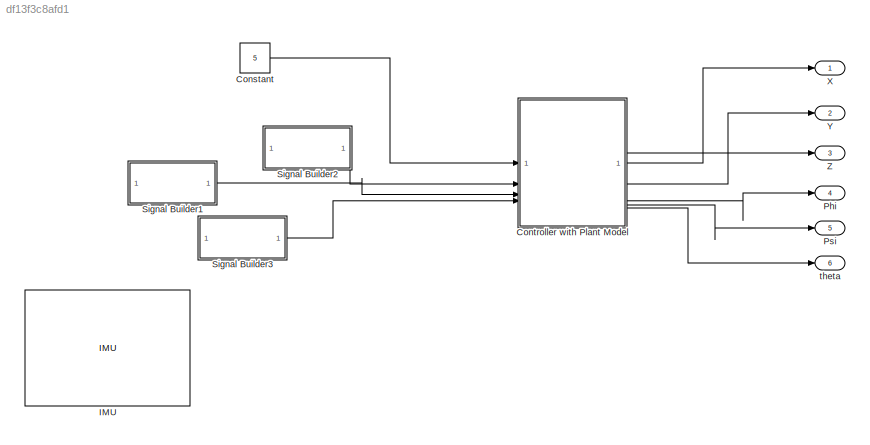
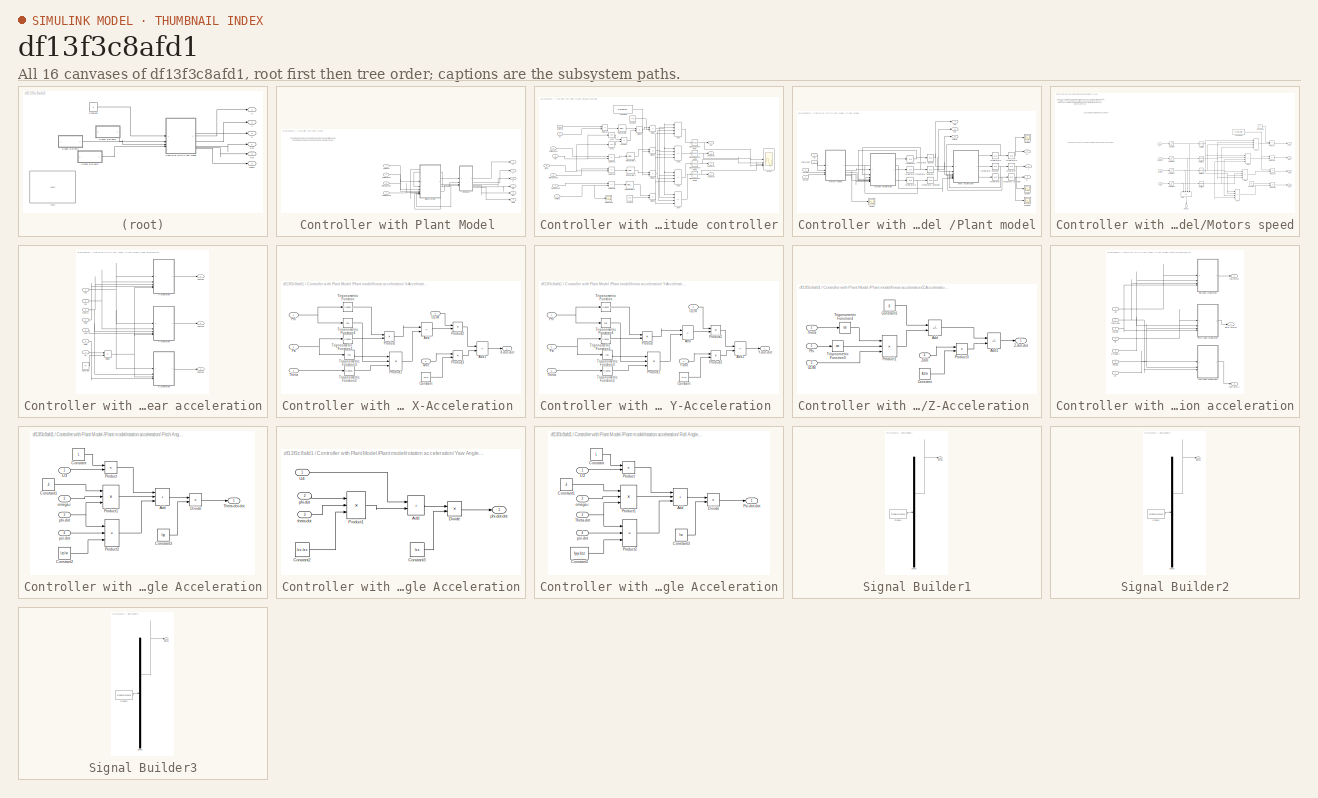
[diagram: thumbnail index - all 16 canvases of the model, root first then tree order]
MODEL slx_df13f3c8afd1
KIND model
CONFIG AbsTol = auto
CONFIG EnableMultiTasking = off
CONFIG FixedStep = auto
CONFIG MaxStep = auto
CONFIG MinStep = auto
CONFIG RelTol = 1e-3
CONFIG SampleTimeConstraint = Unconstrained
CONFIG SolverName = VariableStepAuto
CONFIG StartTime = 0.0
CONFIG StopTime = 10.0
BLOCK [Constant] Constant
  Value = 5
BLOCK [SubSystem] Controller with Plant Model 
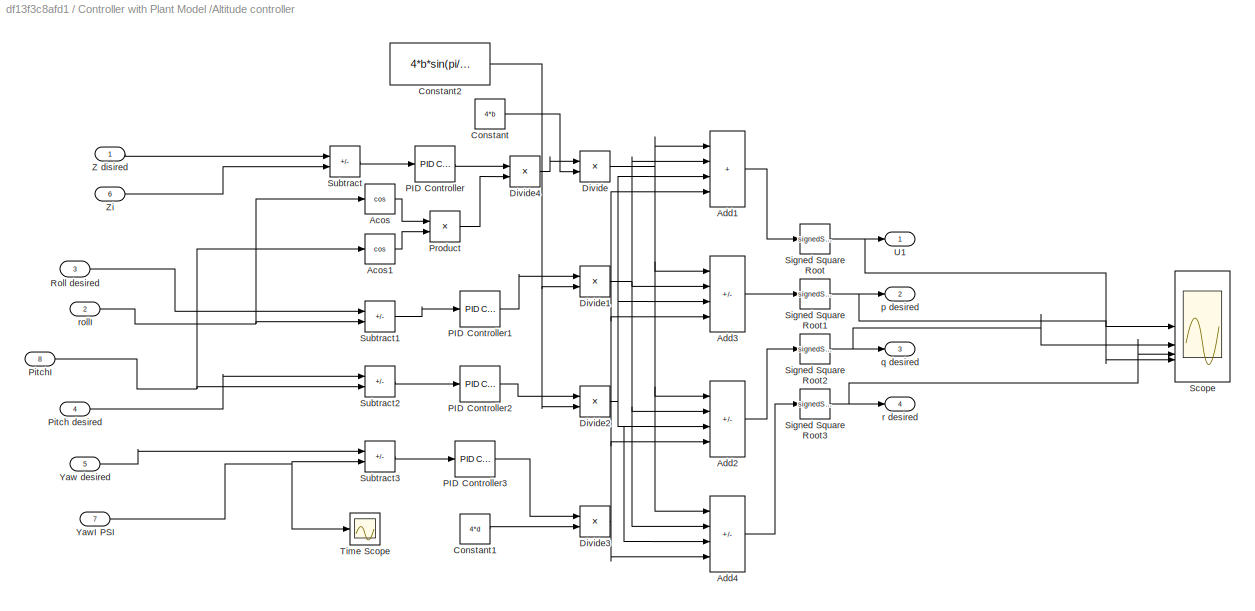
BLOCK [SubSystem] Controller with Plant Model /Altitude controller
BLOCK [Trigonometry] Controller with Plant Model /Altitude controller/Acos
  Operator = cos
BLOCK [Trigonometry] Controller with Plant Model /Altitude controller/Acos1
  Operator = cos
BLOCK [Sum] Controller with Plant Model /Altitude controller/Add1
  IconShape = rectangular
  Inputs = ++++
BLOCK [Sum] Controller with Plant Model /Altitude controller/Add2
  IconShape = rectangular
  Inputs = --++
BLOCK [Sum] Controller with Plant Model /Altitude controller/Add3
  IconShape = rectangular
  Inputs = +--+
BLOCK [Sum] Controller with Plant Model /Altitude controller/Add4
  IconShape = rectangular
  Inputs = +-+-
BLOCK [Constant] Controller with Plant Model /Altitude controller/Constant
  Value = 4*b
BLOCK [Constant] Controller with Plant Model /Altitude controller/Constant1
  Value = 4*d
BLOCK [Constant] Controller with Plant Model /Altitude controller/Constant2
  Value = 4*b*sin(pi/4)*L
BLOCK [Product] Controller with Plant Model /Altitude controller/Divide
  Inputs = */
BLOCK [Product] Controller with Plant Model /Altitude controller/Divide1
  Inputs = */
BLOCK [Product] Controller with Plant Model /Altitude controller/Divide2
  Inputs = */
BLOCK [Product] Controller with Plant Model /Altitude controller/Divide3
  Inputs = */
BLOCK [Product] Controller with Plant Model /Altitude controller/Divide4
  Inputs = */
BLOCK [Reference] Controller with Plant Model /Altitude controller/PID Controller  REF=slpidlib/PID Controller
  LibrarySourceBlock = simulink/Continuous/PID Controller
  SourceBlock = slpidlib/PID Controller
  SourceType = PID 1dof
BLOCK [Reference] Controller with Plant Model /Altitude controller/PID Controller1  REF=slpidlib/PID Controller
  LibrarySourceBlock = simulink/Continuous/PID Controller
  SourceBlock = slpidlib/PID Controller
  SourceType = PID 1dof
BLOCK [Reference] Controller with Plant Model /Altitude controller/PID Controller2  REF=slpidlib/PID Controller
  LibrarySourceBlock = simulink/Continuous/PID Controller
  SourceBlock = slpidlib/PID Controller
  SourceType = PID 1dof
BLOCK [Reference] Controller with Plant Model /Altitude controller/PID Controller3  REF=slpidlib/PID Controller
  LibrarySourceBlock = simulink/Continuous/PID Controller
  SourceBlock = slpidlib/PID Controller
  SourceType = PID 1dof
BLOCK [Inport] Controller with Plant Model /Altitude controller/Pitch desired
  Port = 4
BLOCK [Inport] Controller with Plant Model /Altitude controller/PitchI
  Port = 8
BLOCK [Product] Controller with Plant Model /Altitude controller/Product
BLOCK [Inport] Controller with Plant Model /Altitude controller/Roll desired
  Port = 3
BLOCK [Scope] Controller with Plant Model /Altitude controller/Scope
  Floating = off
  NumInputPorts = 4
  ScopeSpecificationString = Simulink.scopes.TimeScopeBlockCfg('CurrentConfiguration', extmgr.ConfigurationSet(extmgr.Configuration('Core','General UI',true),extmgr.Configuration('Core','Source UI',true),extmgr.Configuration('Sources','WiredSimulink',true,'DataLoggingVariableName','ScopeData1'),extmgr.Configuration('Visuals','Time Domain',true),extmgr.Configuration('Tools','Plot Navigation',true),extmgr.Configuration('Tools',...<+58ch>
BLOCK [Sqrt] Controller with Plant Model /Altitude controller/Signed Square Root
  Operator = signedSqrt
BLOCK [Sqrt] Controller with Plant Model /Altitude controller/Signed Square Root1
  Operator = signedSqrt
BLOCK [Sqrt] Controller with Plant Model /Altitude controller/Signed Square Root2
  Operator = signedSqrt
BLOCK [Sqrt] Controller with Plant Model /Altitude controller/Signed Square Root3
  Operator = signedSqrt
BLOCK [Sum] Controller with Plant Model /Altitude controller/Subtract
  IconShape = rectangular
  Inputs = +-
BLOCK [Sum] Controller with Plant Model /Altitude controller/Subtract1
  IconShape = rectangular
  Inputs = +-
BLOCK [Sum] Controller with Plant Model /Altitude controller/Subtract2
  IconShape = rectangular
  Inputs = +-
BLOCK [Sum] Controller with Plant Model /Altitude controller/Subtract3
  IconShape = rectangular
  Inputs = +-
BLOCK [Scope] Controller with Plant Model /Altitude controller/Time Scope
  DefaultConfigurationName = spbscopes.TimeScopeBlockCfg
  Floating = off
  NumInputPorts = 1
  ScopeSpecificationString = spbscopes.TimeScopeBlockCfg('CurrentConfiguration', extmgr.ConfigurationSet(extmgr.Configuration('Core','General UI',true,'FigureColor',[0.156862745098039 0.156862745098039 0.156862745098039]),extmgr.Configuration('Core','Source UI',true),extmgr.Configuration('Sources','WiredSimulink',true,'DataLoggingVariableName','ScopeData2'),extmgr.Configuration('Visuals','Time Domain',true,'DisplayPropertyDef...<+1385ch>
  UserDataPersistent = on
BLOCK [Outport] Controller with Plant Model /Altitude controller/U1
BLOCK [Inport] Controller with Plant Model /Altitude controller/Yaw desired
  Port = 5
BLOCK [Inport] Controller with Plant Model /Altitude controller/YawI PSI
  Port = 7
BLOCK [Inport] Controller with Plant Model /Altitude controller/Z disired
BLOCK [Inport] Controller with Plant Model /Altitude controller/Zi
  Port = 6
BLOCK [Outport] Controller with Plant Model /Altitude controller/p desired
  Port = 2
BLOCK [Outport] Controller with Plant Model /Altitude controller/q desired
  Port = 3
BLOCK [Outport] Controller with Plant Model /Altitude controller/r desired
  Port = 4
BLOCK [Inport] Controller with Plant Model /Altitude controller/rollI
  Port = 2
BLOCK [Outport] Controller with Plant Model /Phi
  Port = 4
BLOCK [Inport] Controller with Plant Model /Pitch desired
  Port = 3
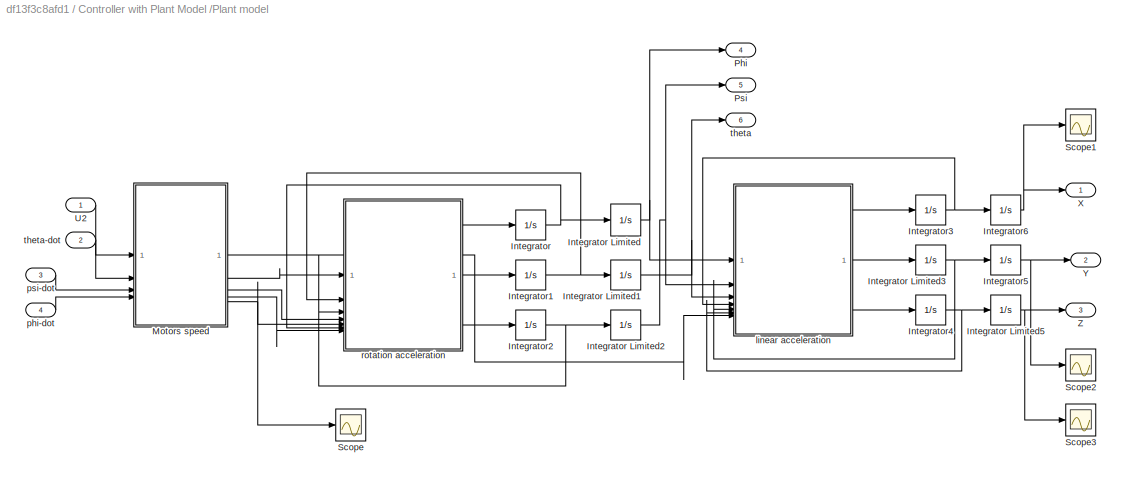
BLOCK [SubSystem] Controller with Plant Model /Plant model
BLOCK [Integrator] Controller with Plant Model /Plant model/Integrator
  LowerSaturationLimit = 0
BLOCK [Integrator] Controller with Plant Model /Plant model/Integrator Limited
  LowerSaturationLimit = 0
  UpperSaturationLimit = 1
  WrapState = on
BLOCK [Integrator] Controller with Plant Model /Plant model/Integrator Limited1
  LowerSaturationLimit = 0
  UpperSaturationLimit = 1
  WrapState = on
BLOCK [Integrator] Controller with Plant Model /Plant model/Integrator Limited2
  LowerSaturationLimit = 0
  UpperSaturationLimit = 1
  WrapState = on
BLOCK [Integrator] Controller with Plant Model /Plant model/Integrator Limited3
  LowerSaturationLimit = 0
  UpperSaturationLimit = 1
BLOCK [Integrator] Controller with Plant Model /Plant model/Integrator Limited5
  LimitOutput = on
  LowerSaturationLimit = -100
  UpperSaturationLimit = 100
BLOCK [Integrator] Controller with Plant Model /Plant model/Integrator1
BLOCK [Integrator] Controller with Plant Model /Plant model/Integrator2
BLOCK [Integrator] Controller with Plant Model /Plant model/Integrator3
BLOCK [Integrator] Controller with Plant Model /Plant model/Integrator4
BLOCK [Integrator] Controller with Plant Model /Plant model/Integrator5
  LimitOutput = on
  LowerSaturationLimit = -100
  UpperSaturationLimit = 100
BLOCK [Integrator] Controller with Plant Model /Plant model/Integrator6
  LimitOutput = on
  LowerSaturationLimit = -100
  UpperSaturationLimit = 100
BLOCK [SubSystem] Controller with Plant Model /Plant model/Motors speed
BLOCK [Sum] Controller with Plant Model /Plant model/Motors speed/Add
  IconShape = rectangular
  Inputs = -+-+
  NameLocation = left
BLOCK [Sum] Controller with Plant Model /Plant model/Motors speed/Add1
  IconShape = rectangular
  Inputs = ++++
BLOCK [Sum] Controller with Plant Model /Plant model/Motors speed/Add2
  IconShape = rectangular
  Inputs = --++
BLOCK [Sum] Controller with Plant Model /Plant model/Motors speed/Add3
  IconShape = rectangular
  Inputs = +--+
BLOCK [Sum] Controller with Plant Model /Plant model/Motors speed/Add4
  IconShape = rectangular
  Inputs = +-+-
BLOCK [Constant] Controller with Plant Model /Plant model/Motors speed/Constant
  Value = d
BLOCK [Constant] Controller with Plant Model /Plant model/Motors speed/Constant1
  Value = b
BLOCK [Constant] Controller with Plant Model /Plant model/Motors speed/Constant2
  Value = b*sin(pi/4)
BLOCK [Math] Controller with Plant Model /Plant model/Motors speed/Hermitian
  Operator = square
BLOCK [Math] Controller with Plant Model /Plant model/Motors speed/Hermitian1
  Operator = square
BLOCK [Math] Controller with Plant Model /Plant model/Motors speed/Hermitian2
  Operator = square
BLOCK [Math] Controller with Plant Model /Plant model/Motors speed/Hermitian3
  Operator = square
BLOCK [Outport] Controller with Plant Model /Plant model/Motors speed/Omega
  NameLocation = left
  Port = 5
BLOCK [Product] Controller with Plant Model /Plant model/Motors speed/Product
BLOCK [Product] Controller with Plant Model /Plant model/Motors speed/Product1
BLOCK [Product] Controller with Plant Model /Plant model/Motors speed/Product2
BLOCK [Product] Controller with Plant Model /Plant model/Motors speed/Product3
BLOCK [Saturate] Controller with Plant Model /Plant model/Motors speed/Saturation
  LowerLimit = -pi
  UpperLimit = pi
BLOCK [Saturate] Controller with Plant Model /Plant model/Motors speed/Saturation1
  LowerLimit = -pi
  UpperLimit = pi
BLOCK [Saturate] Controller with Plant Model /Plant model/Motors speed/Saturation2
  LowerLimit = -pi
  UpperLimit = pi
BLOCK [Saturate] Controller with Plant Model /Plant model/Motors speed/Saturation3
  LowerLimit = -pi
  UpperLimit = pi
BLOCK [Outport] Controller with Plant Model /Plant model/Motors speed/U1,Fz
BLOCK [Inport] Controller with Plant Model /Plant model/Motors speed/U2
BLOCK [Outport] Controller with Plant Model /Plant model/Motors speed/U2,L
  Port = 2
BLOCK [Inport] Controller with Plant Model /Plant model/Motors speed/U3
  Port = 4
BLOCK [Outport] Controller with Plant Model /Plant model/Motors speed/U3,M
  Port = 3
BLOCK [Outport] Controller with Plant Model /Plant model/Motors speed/U4,N
  Port = 4
BLOCK [Inport] Controller with Plant Model /Plant model/Motors speed/psi-dot
  Port = 3
BLOCK [Inport] Controller with Plant Model /Plant model/Motors speed/theta-dot
  Port = 2
BLOCK [Outport] Controller with Plant Model /Plant model/Phi
  Port = 4
BLOCK [Outport] Controller with Plant Model /Plant model/Psi
  Port = 5
BLOCK [Scope] Controller with Plant Model /Plant model/Scope
  Floating = off
  NumInputPorts = 1
  ScopeSpecificationString = Simulink.scopes.TimeScopeBlockCfg('CurrentConfiguration', extmgr.ConfigurationSet(extmgr.Configuration('Core','General UI',true),extmgr.Configuration('Core','Source UI',true),extmgr.Configuration('Sources','WiredSimulink',true),extmgr.Configuration('Visuals','Time Domain',true),extmgr.Configuration('Tools','Plot Navigation',true),extmgr.Configuration('Tools','Measurements',true)),'Version','2022b'...<+1ch>
BLOCK [Scope] Controller with Plant Model /Plant model/Scope1
  Floating = off
  NumInputPorts = 1
  ScopeSpecificationString = Simulink.scopes.TimeScopeBlockCfg('CurrentConfiguration', extmgr.ConfigurationSet(extmgr.Configuration('Core','General UI',true),extmgr.Configuration('Core','Source UI',true),extmgr.Configuration('Sources','WiredSimulink',true,'DataLoggingVariableName','ScopeData1'),extmgr.Configuration('Visuals','Time Domain',true),extmgr.Configuration('Tools','Plot Navigation',true),extmgr.Configuration('Tools',...<+40ch>
BLOCK [Scope] Controller with Plant Model /Plant model/Scope2
  Floating = off
  NumInputPorts = 1
  ScopeSpecificationString = Simulink.scopes.TimeScopeBlockCfg('CurrentConfiguration', extmgr.ConfigurationSet(extmgr.Configuration('Core','General UI',true),extmgr.Configuration('Core','Source UI',true),extmgr.Configuration('Sources','WiredSimulink',true,'DataLoggingVariableName','ScopeData2'),extmgr.Configuration('Visuals','Time Domain',true),extmgr.Configuration('Tools','Plot Navigation',true),extmgr.Configuration('Tools',...<+40ch>
BLOCK [Scope] Controller with Plant Model /Plant model/Scope3
  Floating = off
  NumInputPorts = 1
  ScopeSpecificationString = Simulink.scopes.TimeScopeBlockCfg('CurrentConfiguration', extmgr.ConfigurationSet(extmgr.Configuration('Core','General UI',true),extmgr.Configuration('Core','Source UI',true),extmgr.Configuration('Sources','WiredSimulink',true,'DataLoggingVariableName','ScopeData3'),extmgr.Configuration('Visuals','Time Domain',true),extmgr.Configuration('Tools','Plot Navigation',true),extmgr.Configuration('Tools',...<+40ch>
BLOCK [Inport] Controller with Plant Model /Plant model/U2
BLOCK [Outport] Controller with Plant Model /Plant model/X
BLOCK [Outport] Controller with Plant Model /Plant model/Y
  Port = 2
BLOCK [Outport] Controller with Plant Model /Plant model/Z
  Port = 3
BLOCK [SubSystem] Controller with Plant Model /Plant model/linear acceleration
BLOCK [SubSystem] Controller with Plant Model /Plant model/linear acceleration/ X-Acceleration 
BLOCK [Sum] Controller with Plant Model /Plant model/linear acceleration/ X-Acceleration /Add
  IconShape = rectangular
  Inputs = +-
BLOCK [Sum] Controller with Plant Model /Plant model/linear acceleration/ X-Acceleration /Add1
  IconShape = rectangular
  Inputs = +-
BLOCK [Constant] Controller with Plant Model /Plant model/linear acceleration/ X-Acceleration /Constant
  Value = Ax/m
BLOCK [Inport] Controller with Plant Model /Plant model/linear acceleration/ X-Acceleration /Phi
BLOCK [Product] Controller with Plant Model /Plant model/linear acceleration/ X-Acceleration /Product
BLOCK [Product] Controller with Plant Model /Plant model/linear acceleration/ X-Acceleration /Product1
  Inputs = 3
BLOCK [Product] Controller with Plant Model /Plant model/linear acceleration/ X-Acceleration /Product2
BLOCK [Product] Controller with Plant Model /Plant model/linear acceleration/ X-Acceleration /Product3
BLOCK [Inport] Controller with Plant Model /Plant model/linear acceleration/ X-Acceleration /Psi
  Port = 2
BLOCK [Inport] Controller with Plant Model /Plant model/linear acceleration/ X-Acceleration /Theta
  Port = 3
BLOCK [Trigonometry] Controller with Plant Model /Plant model/linear acceleration/ X-Acceleration /Trigonometric Function
BLOCK [Trigonometry] Controller with Plant Model /Plant model/linear acceleration/ X-Acceleration /Trigonometric Function1
BLOCK [Trigonometry] Controller with Plant Model /Plant model/linear acceleration/ X-Acceleration /Trigonometric Function2
BLOCK [Trigonometry] Controller with Plant Model /Plant model/linear acceleration/ X-Acceleration /Trigonometric Function3
  Operator = cos
BLOCK [Trigonometry] Controller with Plant Model /Plant model/linear acceleration/ X-Acceleration /Trigonometric Function4
  Operator = cos
BLOCK [Inport] Controller with Plant Model /Plant model/linear acceleration/ X-Acceleration /U1//M
  Port = 5
BLOCK [Outport] Controller with Plant Model /Plant model/linear acceleration/ X-Acceleration /X-dot-dot
BLOCK [Inport] Controller with Plant Model /Plant model/linear acceleration/ X-Acceleration /xdot
  Port = 4
BLOCK [SubSystem] Controller with Plant Model /Plant model/linear acceleration/ Y-Acceleration 
BLOCK [Sum] Controller with Plant Model /Plant model/linear acceleration/ Y-Acceleration /Add
  IconShape = rectangular
  Inputs = -+
BLOCK [Sum] Controller with Plant Model /Plant model/linear acceleration/ Y-Acceleration /Add1
  IconShape = rectangular
  Inputs = +-
BLOCK [Constant] Controller with Plant Model /Plant model/linear acceleration/ Y-Acceleration /Constant
  Value = Ay/m
BLOCK [Inport] Controller with Plant Model /Plant model/linear acceleration/ Y-Acceleration /Phi
BLOCK [Product] Controller with Plant Model /Plant model/linear acceleration/ Y-Acceleration /Product
BLOCK [Product] Controller with Plant Model /Plant model/linear acceleration/ Y-Acceleration /Product1
  Inputs = 3
BLOCK [Product] Controller with Plant Model /Plant model/linear acceleration/ Y-Acceleration /Product2
BLOCK [Product] Controller with Plant Model /Plant model/linear acceleration/ Y-Acceleration /Product3
BLOCK [Inport] Controller with Plant Model /Plant model/linear acceleration/ Y-Acceleration /Psi
  Port = 2
BLOCK [Inport] Controller with Plant Model /Plant model/linear acceleration/ Y-Acceleration /Theta
  Port = 3
BLOCK [Trigonometry] Controller with Plant Model /Plant model/linear acceleration/ Y-Acceleration /Trigonometric Function
BLOCK [Trigonometry] Controller with Plant Model /Plant model/linear acceleration/ Y-Acceleration /Trigonometric Function1
BLOCK [Trigonometry] Controller with Plant Model /Plant model/linear acceleration/ Y-Acceleration /Trigonometric Function2
BLOCK [Trigonometry] Controller with Plant Model /Plant model/linear acceleration/ Y-Acceleration /Trigonometric Function3
  Operator = cos
BLOCK [Trigonometry] Controller with Plant Model /Plant model/linear acceleration/ Y-Acceleration /Trigonometric Function4
  Operator = cos
BLOCK [Inport] Controller with Plant Model /Plant model/linear acceleration/ Y-Acceleration /U1//m
  Port = 5
BLOCK [Inport] Controller with Plant Model /Plant model/linear acceleration/ Y-Acceleration /Y-dot
  Port = 4
BLOCK [Outport] Controller with Plant Model /Plant model/linear acceleration/ Y-Acceleration /Y-dot-dot
BLOCK [Constant] Controller with Plant Model /Plant model/linear acceleration/Constant
  Value = m
BLOCK [Product] Controller with Plant Model /Plant model/linear acceleration/Divide
  Inputs = */
BLOCK [Inport] Controller with Plant Model /Plant model/linear acceleration/Phi
BLOCK [Inport] Controller with Plant Model /Plant model/linear acceleration/Psi
  Port = 2
BLOCK [Inport] Controller with Plant Model /Plant model/linear acceleration/U1
  Port = 7
BLOCK [Inport] Controller with Plant Model /Plant model/linear acceleration/Xdot
  Port = 4
BLOCK [Outport] Controller with Plant Model /Plant model/linear acceleration/Xdotdot
BLOCK [Inport] Controller with Plant Model /Plant model/linear acceleration/Ydot
  Port = 5
BLOCK [Outport] Controller with Plant Model /Plant model/linear acceleration/Ydotdot
  Port = 2
BLOCK [SubSystem] Controller with Plant Model /Plant model/linear acceleration/Z-Acceleration 
BLOCK [Sum] Controller with Plant Model /Plant model/linear acceleration/Z-Acceleration /Add
  IconShape = rectangular
  Inputs = -+
BLOCK [Sum] Controller with Plant Model /Plant model/linear acceleration/Z-Acceleration /Add1
  IconShape = rectangular
  Inputs = +-
BLOCK [Constant] Controller with Plant Model /Plant model/linear acceleration/Z-Acceleration /Constant
  Value = Az/m
BLOCK [Constant] Controller with Plant Model /Plant model/linear acceleration/Z-Acceleration /Constant1
  Value = g
BLOCK [Inport] Controller with Plant Model /Plant model/linear acceleration/Z-Acceleration /Phi
BLOCK [Product] Controller with Plant Model /Plant model/linear acceleration/Z-Acceleration /Product1
  Inputs = 3
BLOCK [Product] Controller with Plant Model /Plant model/linear acceleration/Z-Acceleration /Product3
BLOCK [Inport] Controller with Plant Model /Plant model/linear acceleration/Z-Acceleration /Theta
  Port = 2
BLOCK [Trigonometry] Controller with Plant Model /Plant model/linear acceleration/Z-Acceleration /Trigonometric Function3
  Operator = cos
BLOCK [Trigonometry] Controller with Plant Model /Plant model/linear acceleration/Z-Acceleration /Trigonometric Function4
  Operator = cos
BLOCK [Inport] Controller with Plant Model /Plant model/linear acceleration/Z-Acceleration /U1//M
  Port = 3
BLOCK [Outport] Controller with Plant Model /Plant model/linear acceleration/Z-Acceleration /Z-dot-dot
BLOCK [Inport] Controller with Plant Model /Plant model/linear acceleration/Z-Acceleration /Zdot
  Port = 4
BLOCK [Inport] Controller with Plant Model /Plant model/linear acceleration/Zdot
  Port = 6
BLOCK [Outport] Controller with Plant Model /Plant model/linear acceleration/Zdotdot
  Port = 3
BLOCK [Inport] Controller with Plant Model /Plant model/linear acceleration/therta
  Port = 3
BLOCK [Inport] Controller with Plant Model /Plant model/phi-dot
  Port = 4
BLOCK [Inport] Controller with Plant Model /Plant model/psi-dot
  Port = 3
BLOCK [SubSystem] Controller with Plant Model /Plant model/rotation acceleration
BLOCK [SubSystem] Controller with Plant Model /Plant model/rotation acceleration/  Pitch Angle Acceleration
BLOCK [Sum] Controller with Plant Model /Plant model/rotation acceleration/  Pitch Angle Acceleration/Add
  IconShape = rectangular
  Inputs = +++
BLOCK [Constant] Controller with Plant Model /Plant model/rotation acceleration/  Pitch Angle Acceleration/Constant
  Value = L
BLOCK [Constant] Controller with Plant Model /Plant model/rotation acceleration/  Pitch Angle Acceleration/Constant1
  Value = Jr
BLOCK [Constant] Controller with Plant Model /Plant model/rotation acceleration/  Pitch Angle Acceleration/Constant2
  Value = Izz-Ixx
BLOCK [Constant] Controller with Plant Model /Plant model/rotation acceleration/  Pitch Angle Acceleration/Constant3
  Value = Iyy
BLOCK [Product] Controller with Plant Model /Plant model/rotation acceleration/  Pitch Angle Acceleration/Divide
  Inputs = */
BLOCK [Product] Controller with Plant Model /Plant model/rotation acceleration/  Pitch Angle Acceleration/Product
BLOCK [Product] Controller with Plant Model /Plant model/rotation acceleration/  Pitch Angle Acceleration/Product1
  Inputs = 3
BLOCK [Product] Controller with Plant Model /Plant model/rotation acceleration/  Pitch Angle Acceleration/Product2
  Inputs = 3
BLOCK [Outport] Controller with Plant Model /Plant model/rotation acceleration/  Pitch Angle Acceleration/Theta-dot-dot
BLOCK [Inport] Controller with Plant Model /Plant model/rotation acceleration/  Pitch Angle Acceleration/U3
BLOCK [Inport] Controller with Plant Model /Plant model/rotation acceleration/  Pitch Angle Acceleration/omega-r
  Port = 2
BLOCK [Inport] Controller with Plant Model /Plant model/rotation acceleration/  Pitch Angle Acceleration/phi-dot
  Port = 3
BLOCK [Inport] Controller with Plant Model /Plant model/rotation acceleration/  Pitch Angle Acceleration/psi-dot
  Port = 4
BLOCK [SubSystem] Controller with Plant Model /Plant model/rotation acceleration/  Yaw Angle Acceleration
BLOCK [Sum] Controller with Plant Model /Plant model/rotation acceleration/  Yaw Angle Acceleration/Add
  IconShape = rectangular
BLOCK [Constant] Controller with Plant Model /Plant model/rotation acceleration/  Yaw Angle Acceleration/Constant2
  Value = Ixx-Izz
BLOCK [Constant] Controller with Plant Model /Plant model/rotation acceleration/  Yaw Angle Acceleration/Constant3
  Value = Izz
BLOCK [Product] Controller with Plant Model /Plant model/rotation acceleration/  Yaw Angle Acceleration/Divide
  Inputs = */
BLOCK [Product] Controller with Plant Model /Plant model/rotation acceleration/  Yaw Angle Acceleration/Product1
  Inputs = 3
BLOCK [Inport] Controller with Plant Model /Plant model/rotation acceleration/  Yaw Angle Acceleration/U4
BLOCK [Inport] Controller with Plant Model /Plant model/rotation acceleration/  Yaw Angle Acceleration/phi-dot
  Port = 2
BLOCK [Outport] Controller with Plant Model /Plant model/rotation acceleration/  Yaw Angle Acceleration/phi-dot-dot
BLOCK [Inport] Controller with Plant Model /Plant model/rotation acceleration/  Yaw Angle Acceleration/theta-dot
  Port = 3
BLOCK [SubSystem] Controller with Plant Model /Plant model/rotation acceleration/ Roll Angle Acceleration
BLOCK [Sum] Controller with Plant Model /Plant model/rotation acceleration/ Roll Angle Acceleration/Add
  IconShape = rectangular
  Inputs = +++
BLOCK [Constant] Controller with Plant Model /Plant model/rotation acceleration/ Roll Angle Acceleration/Constant
  Value = L
BLOCK [Constant] Controller with Plant Model /Plant model/rotation acceleration/ Roll Angle Acceleration/Constant1
  Value = Jr
BLOCK [Constant] Controller with Plant Model /Plant model/rotation acceleration/ Roll Angle Acceleration/Constant2
  Value = Iyy-Izz
BLOCK [Constant] Controller with Plant Model /Plant model/rotation acceleration/ Roll Angle Acceleration/Constant3
  Value = Ixx
BLOCK [Product] Controller with Plant Model /Plant model/rotation acceleration/ Roll Angle Acceleration/Divide
  Inputs = */
BLOCK [Product] Controller with Plant Model /Plant model/rotation acceleration/ Roll Angle Acceleration/Product
BLOCK [Product] Controller with Plant Model /Plant model/rotation acceleration/ Roll Angle Acceleration/Product1
  Inputs = 3
BLOCK [Product] Controller with Plant Model /Plant model/rotation acceleration/ Roll Angle Acceleration/Product2
  Inputs = 3
BLOCK [Outport] Controller with Plant Model /Plant model/rotation acceleration/ Roll Angle Acceleration/Psi-dot-dot
BLOCK [Inport] Controller with Plant Model /Plant model/rotation acceleration/ Roll Angle Acceleration/Theta-dot
  Port = 3
BLOCK [Inport] Controller with Plant Model /Plant model/rotation acceleration/ Roll Angle Acceleration/U2
BLOCK [Inport] Controller with Plant Model /Plant model/rotation acceleration/ Roll Angle Acceleration/omega-r
  Port = 2
BLOCK [Inport] Controller with Plant Model /Plant model/rotation acceleration/ Roll Angle Acceleration/psi-dot
  Port = 4
BLOCK [Inport] Controller with Plant Model /Plant model/rotation acceleration/Omega-r
  Port = 5
BLOCK [Inport] Controller with Plant Model /Plant model/rotation acceleration/Phi-dot
  Port = 6
BLOCK [Inport] Controller with Plant Model /Plant model/rotation acceleration/U2
BLOCK [Inport] Controller with Plant Model /Plant model/rotation acceleration/U3
  Port = 4
BLOCK [Inport] Controller with Plant Model /Plant model/rotation acceleration/U4
  Port = 7
BLOCK [Outport] Controller with Plant Model /Plant model/rotation acceleration/pitch rate(p)
  Port = 2
BLOCK [Inport] Controller with Plant Model /Plant model/rotation acceleration/psi-dot
  Port = 3
BLOCK [Outport] Controller with Plant Model /Plant model/rotation acceleration/roll rate(q)
BLOCK [Inport] Controller with Plant Model /Plant model/rotation acceleration/theta-dot
  Port = 2
BLOCK [Outport] Controller with Plant Model /Plant model/rotation acceleration/yaw rate(r)
  Port = 3
BLOCK [Outport] Controller with Plant Model /Plant model/theta
  Port = 6
BLOCK [Inport] Controller with Plant Model /Plant model/theta-dot
  Port = 2
BLOCK [Outport] Controller with Plant Model /Psi
  Port = 5
BLOCK [Inport] Controller with Plant Model /Roll desired
  Port = 2
BLOCK [Outport] Controller with Plant Model /X
BLOCK [Outport] Controller with Plant Model /Y
  Port = 2
BLOCK [Inport] Controller with Plant Model /Yaw desired
  Port = 4
BLOCK [Outport] Controller with Plant Model /Z
  Port = 3
BLOCK [Inport] Controller with Plant Model /Z disired
BLOCK [Outport] Controller with Plant Model /theta
  Port = 6
BLOCK [Reference] IMU  REF=mspsensorlib/IMU
  SourceBlock = mspsensorlib/IMU
  SourceType = fusion.simulink.imuSensor
BLOCK [Outport] Phi
  Port = 4
BLOCK [Outport] Psi
  Port = 5
BLOCK [SubSystem] Signal Builder1
  ClipboardFcn = sigbuilder_block('clipboard');
  CloseFcn = sigbuilder_block('close');
  ContinueFcn = sigbuilder_block('continue');
  CopyFcn = sigbuilder_block('copy');
  DeleteFcn = sigbuilder_block('delete');
  LoadFcn = sigbuilder_block('load');
  MaskHideContents = on
  ModelCloseFcn = sigbuilder_block('modelClose');
  NameChangeFcn = sigbuilder_block('namechange');
  OpenFcn = sigbuilder_block('open',[437.6 199.2 550.4 400 ]);
  PauseFcn = sigbuilder_block('pause');
  PreSaveFcn = sigbuilder_block('preSave');
  StartFcn = sigbuilder_block('start');
  StopFcn = sigbuilder_block('stop');
  Tag = STV Subsys
BLOCK [Demux] Signal Builder1/Demux
  DisplayOption = none
  Outputs = 1
  Tag = STV Demux
BLOCK [FromWorkspace] Signal Builder1/FromWs
  Tag = STV FromWs
  VariableName = tuvar
BLOCK [Outport] Signal Builder1/Signal 1
  Tag = STV Outport
BLOCK [SubSystem] Signal Builder2
  ClipboardFcn = sigbuilder_block('clipboard');
  CloseFcn = sigbuilder_block('close');
  ContinueFcn = sigbuilder_block('continue');
  CopyFcn = sigbuilder_block('copy');
  DeleteFcn = sigbuilder_block('delete');
  LoadFcn = sigbuilder_block('load');
  MaskHideContents = on
  ModelCloseFcn = sigbuilder_block('modelClose');
  NameChangeFcn = sigbuilder_block('namechange');
  OpenFcn = sigbuilder_block('open',[437.6 199.2 550.4 400 ]);
  PauseFcn = sigbuilder_block('pause');
  PreSaveFcn = sigbuilder_block('preSave');
  StartFcn = sigbuilder_block('start');
  StopFcn = sigbuilder_block('stop');
  Tag = STV Subsys
BLOCK [Demux] Signal Builder2/Demux
  DisplayOption = none
  Outputs = 1
  Tag = STV Demux
BLOCK [FromWorkspace] Signal Builder2/FromWs
  Tag = STV FromWs
  VariableName = tuvar
BLOCK [Outport] Signal Builder2/Signal 1
  Tag = STV Outport
BLOCK [SubSystem] Signal Builder3
  ClipboardFcn = sigbuilder_block('clipboard');
  CloseFcn = sigbuilder_block('close');
  ContinueFcn = sigbuilder_block('continue');
  CopyFcn = sigbuilder_block('copy');
  DeleteFcn = sigbuilder_block('delete');
  LoadFcn = sigbuilder_block('load');
  MaskHideContents = on
  ModelCloseFcn = sigbuilder_block('modelClose');
  NameChangeFcn = sigbuilder_block('namechange');
  OpenFcn = sigbuilder_block('open',[437.6 199.2 550.4 400 ]);
  PauseFcn = sigbuilder_block('pause');
  PreSaveFcn = sigbuilder_block('preSave');
  StartFcn = sigbuilder_block('start');
  StopFcn = sigbuilder_block('stop');
  Tag = STV Subsys
BLOCK [Demux] Signal Builder3/Demux
  DisplayOption = none
  Outputs = 1
  Tag = STV Demux
BLOCK [FromWorkspace] Signal Builder3/FromWs
  Tag = STV FromWs
  VariableName = tuvar
BLOCK [Outport] Signal Builder3/Signal 1
  Tag = STV Outport
BLOCK [Outport] X
BLOCK [Outport] Y
  Port = 2
BLOCK [Outport] Z
  Port = 3
BLOCK [Outport] theta
  Port = 6
ANNOTATION Controller with Plant Model : Changing M2 and M4 or M1 and M3 speeds the change of pitch angle. Changing M1 and M2 or M3 and M4 speeds roll angle change.
ANNOTATION Controller with Plant Model /Plant model/Motors speed: U1 is the total thrust of all motors in the Z direction
ANNOTATION Controller with Plant Model /Plant model/Motors speed: Yaw is produced in quadcopter by the rotation of the propellers. Two propellers rotate clockwise and other two rotate counter-clockwise to balance the yaw moment
ANNOTATION Controller with Plant Model /Plant model/Motors speed: This subsystem takes the motor commands and converts them to moments to control the vehicles orientation and altitude. Omega is the total angular velocity of the quadcopter; the propellers rotate in the opposite direction to balance the total angular velocity.
LINE Constant:1 -> Controller with Plant Model :1
LINE Controller with Plant Model /Altitude controller/Acos1:1 -> Controller with Plant Model /Altitude controller/Product:2
LINE Controller with Plant Model /Altitude controller/Acos:1 -> Controller with Plant Model /Altitude controller/Product:1
LINE Controller with Plant Model /Altitude controller/Add1:1 -> Controller with Plant Model /Altitude controller/Signed Square Root:1
LINE Controller with Plant Model /Altitude controller/Add2:1 -> Controller with Plant Model /Altitude controller/Signed Square Root2:1
LINE Controller with Plant Model /Altitude controller/Add3:1 -> Controller with Plant Model /Altitude controller/Signed Square Root1:1
LINE Controller with Plant Model /Altitude controller/Add4:1 -> Controller with Plant Model /Altitude controller/Signed Square Root3:1
LINE Controller with Plant Model /Altitude controller/Constant1:1 -> Controller with Plant Model /Altitude controller/Divide3:2
NET Controller with Plant Model /Altitude controller/Constant2:1 -> Controller with Plant Model /Altitude controller/Divide1:2, Controller with Plant Model /Altitude controller/Divide2:2
LINE Controller with Plant Model /Altitude controller/Constant:1 -> Controller with Plant Model /Altitude controller/Divide:2
NET Controller with Plant Model /Altitude controller/Divide1:1 -> Controller with Plant Model /Altitude controller/Add1:2, Controller with Plant Model /Altitude controller/Add2:2, Controller with Plant Model /Altitude controller/Add3:2, Controller with Plant Model /Altitude controller/Add4:2
NET Controller with Plant Model /Altitude controller/Divide2:1 -> Controller with Plant Model /Altitude controller/Add1:3, Controller with Plant Model /Altitude controller/Add2:3, Controller with Plant Model /Altitude controller/Add3:3, Controller with Plant Model /Altitude controller/Add4:3
NET Controller with Plant Model /Altitude controller/Divide3:1 -> Controller with Plant Model /Altitude controller/Add1:4, Controller with Plant Model /Altitude controller/Add2:4, Controller with Plant Model /Altitude controller/Add3:4, Controller with Plant Model /Altitude controller/Add4:4
LINE Controller with Plant Model /Altitude controller/Divide4:1 -> Controller with Plant Model /Altitude controller/Divide:1
NET Controller with Plant Model /Altitude controller/Divide:1 -> Controller with Plant Model /Altitude controller/Add1:1, Controller with Plant Model /Altitude controller/Add2:1, Controller with Plant Model /Altitude controller/Add3:1, Controller with Plant Model /Altitude controller/Add4:1
LINE Controller with Plant Model /Altitude controller/PID Controller1:1 -> Controller with Plant Model /Altitude controller/Divide1:1
LINE Controller with Plant Model /Altitude controller/PID Controller2:1 -> Controller with Plant Model /Altitude controller/Divide2:1
LINE Controller with Plant Model /Altitude controller/PID Controller3:1 -> Controller with Plant Model /Altitude controller/Divide3:1
LINE Controller with Plant Model /Altitude controller/PID Controller:1 -> Controller with Plant Model /Altitude controller/Divide4:1
LINE Controller with Plant Model /Altitude controller/Pitch desired:1 -> Controller with Plant Model /Altitude controller/Subtract2:1
NET Controller with Plant Model /Altitude controller/PitchI:1 -> Controller with Plant Model /Altitude controller/Acos1:1, Controller with Plant Model /Altitude controller/Subtract2:2
LINE Controller with Plant Model /Altitude controller/Product:1 -> Controller with Plant Model /Altitude controller/Divide4:2
LINE Controller with Plant Model /Altitude controller/Roll desired:1 -> Controller with Plant Model /Altitude controller/Subtract1:1
NET Controller with Plant Model /Altitude controller/Signed Square Root1:1 -> Controller with Plant Model /Altitude controller/Scope:4, Controller with Plant Model /Altitude controller/p desired:1
NET Controller with Plant Model /Altitude controller/Signed Square Root2:1 -> Controller with Plant Model /Altitude controller/Scope:2, Controller with Plant Model /Altitude controller/q desired:1
NET Controller with Plant Model /Altitude controller/Signed Square Root3:1 -> Controller with Plant Model /Altitude controller/Scope:3, Controller with Plant Model /Altitude controller/r desired:1
NET Controller with Plant Model /Altitude controller/Signed Square Root:1 -> Controller with Plant Model /Altitude controller/Scope:1, Controller with Plant Model /Altitude controller/U1:1
LINE Controller with Plant Model /Altitude controller/Subtract1:1 -> Controller with Plant Model /Altitude controller/PID Controller1:1
LINE Controller with Plant Model /Altitude controller/Subtract2:1 -> Controller with Plant Model /Altitude controller/PID Controller2:1
LINE Controller with Plant Model /Altitude controller/Subtract3:1 -> Controller with Plant Model /Altitude controller/PID Controller3:1
LINE Controller with Plant Model /Altitude controller/Subtract:1 -> Controller with Plant Model /Altitude controller/PID Controller:1
LINE Controller with Plant Model /Altitude controller/Yaw desired:1 -> Controller with Plant Model /Altitude controller/Subtract3:1
NET Controller with Plant Model /Altitude controller/YawI PSI:1 -> Controller with Plant Model /Altitude controller/Subtract3:2, Controller with Plant Model /Altitude controller/Time Scope:1
LINE Controller with Plant Model /Altitude controller/Z disired:1 -> Controller with Plant Model /Altitude controller/Subtract:1
LINE Controller with Plant Model /Altitude controller/Zi:1 -> Controller with Plant Model /Altitude controller/Subtract:2
NET Controller with Plant Model /Altitude controller/rollI:1 -> Controller with Plant Model /Altitude controller/Acos:1, Controller with Plant Model /Altitude controller/Subtract1:2
NET Controller with Plant Model /Altitude controller:1 -> Controller with Plant Model /Altitude controller:6, Controller with Plant Model /Plant model:1
NET Controller with Plant Model /Altitude controller:2 -> Controller with Plant Model /Altitude controller:2, Controller with Plant Model /Plant model:2
NET Controller with Plant Model /Altitude controller:3 -> Controller with Plant Model /Altitude controller:7, Controller with Plant Model /Plant model:3
NET Controller with Plant Model /Altitude controller:4 -> Controller with Plant Model /Altitude controller:8, Controller with Plant Model /Plant model:4
LINE Controller with Plant Model /Pitch desired:1 -> Controller with Plant Model /Altitude controller:4
NET Controller with Plant Model /Plant model/Integrator Limited1:1 -> Controller with Plant Model /Plant model/linear acceleration:3, Controller with Plant Model /Plant model/theta:1
NET Controller with Plant Model /Plant model/Integrator Limited2:1 -> Controller with Plant Model /Plant model/Psi:1, Controller with Plant Model /Plant model/linear acceleration:2
NET Controller with Plant Model /Plant model/Integrator Limited3:1 -> Controller with Plant Model /Plant model/Integrator5:1, Controller with Plant Model /Plant model/linear acceleration:5
NET Controller with Plant Model /Plant model/Integrator Limited5:1 -> Controller with Plant Model /Plant model/Scope3:1, Controller with Plant Model /Plant model/Z:1
NET Controller with Plant Model /Plant model/Integrator Limited:1 -> Controller with Plant Model /Plant model/Phi:1, Controller with Plant Model /Plant model/linear acceleration:1
NET Controller with Plant Model /Plant model/Integrator1:1 -> Controller with Plant Model /Plant model/Integrator Limited1:1, Controller with Plant Model /Plant model/rotation acceleration:2
NET Controller with Plant Model /Plant model/Integrator2:1 -> Controller with Plant Model /Plant model/Integrator Limited2:1, Controller with Plant Model /Plant model/rotation acceleration:3
NET Controller with Plant Model /Plant model/Integrator3:1 -> Controller with Plant Model /Plant model/Integrator6:1, Controller with Plant Model /Plant model/linear acceleration:4
NET Controller with Plant Model /Plant model/Integrator4:1 -> Controller with Plant Model /Plant model/Integrator Limited5:1, Controller with Plant Model /Plant model/linear acceleration:6
NET Controller with Plant Model /Plant model/Integrator5:1 -> Controller with Plant Model /Plant model/Scope2:1, Controller with Plant Model /Plant model/Y:1
NET Controller with Plant Model /Plant model/Integrator6:1 -> Controller with Plant Model /Plant model/Scope1:1, Controller with Plant Model /Plant model/X:1
NET Controller with Plant Model /Plant model/Integrator:1 -> Controller with Plant Model /Plant model/Integrator Limited:1, Controller with Plant Model /Plant model/rotation acceleration:6
LINE Controller with Plant Model /Plant model/Motors speed/Add1:1 -> Controller with Plant Model /Plant model/Motors speed/Product:2
LINE Controller with Plant Model /Plant model/Motors speed/Add2:1 -> Controller with Plant Model /Plant model/Motors speed/Product2:2
LINE Controller with Plant Model /Plant model/Motors speed/Add3:1 -> Controller with Plant Model /Plant model/Motors speed/Product1:2
LINE Controller with Plant Model /Plant model/Motors speed/Add4:1 -> Controller with Plant Model /Plant model/Motors speed/Product3:2
LINE Controller with Plant Model /Plant model/Motors speed/Add:1 -> Controller with Plant Model /Plant model/Motors speed/Omega:1
LINE Controller with Plant Model /Plant model/Motors speed/Constant1:1 -> Controller with Plant Model /Plant model/Motors speed/Product:1
NET Controller with Plant Model /Plant model/Motors speed/Constant2:1 -> Controller with Plant Model /Plant model/Motors speed/Product1:1, Controller with Plant Model /Plant model/Motors speed/Product2:1
LINE Controller with Plant Model /Plant model/Motors speed/Constant:1 -> Controller with Plant Model /Plant model/Motors speed/Product3:1
NET Controller with Plant Model /Plant model/Motors speed/Hermitian1:1 -> Controller with Plant Model /Plant model/Motors speed/Add1:2, Controller with Plant Model /Plant model/Motors speed/Add2:4, Controller with Plant Model /Plant model/Motors speed/Add3:2
NET Controller with Plant Model /Plant model/Motors speed/Hermitian2:1 -> Controller with Plant Model /Plant model/Motors speed/Add1:3, Controller with Plant Model /Plant model/Motors speed/Add2:1, Controller with Plant Model /Plant model/Motors speed/Add3:3, Controller with Plant Model /Plant model/Motors speed/Add4:3
NET Controller with Plant Model /Plant model/Motors speed/Hermitian3:1 -> Controller with Plant Model /Plant model/Motors speed/Add1:4, Controller with Plant Model /Plant model/Motors speed/Add2:2, Controller with Plant Model /Plant model/Motors speed/Add3:4, Controller with Plant Model /Plant model/Motors speed/Add4:4
NET Controller with Plant Model /Plant model/Motors speed/Hermitian:1 -> Controller with Plant Model /Plant model/Motors speed/Add1:1, Controller with Plant Model /Plant model/Motors speed/Add2:3, Controller with Plant Model /Plant model/Motors speed/Add3:1, Controller with Plant Model /Plant model/Motors speed/Add4:1, Controller with Plant Model /Plant model/Motors speed/Add4:2
LINE Controller with Plant Model /Plant model/Motors speed/Product1:1 -> Controller with Plant Model /Plant model/Motors speed/U2,L:1
LINE Controller with Plant Model /Plant model/Motors speed/Product2:1 -> Controller with Plant Model /Plant model/Motors speed/U3,M:1
LINE Controller with Plant Model /Plant model/Motors speed/Product3:1 -> Controller with Plant Model /Plant model/Motors speed/U4,N:1
LINE Controller with Plant Model /Plant model/Motors speed/Product:1 -> Controller with Plant Model /Plant model/Motors speed/U1,Fz:1
NET Controller with Plant Model /Plant model/Motors speed/Saturation1:1 -> Controller with Plant Model /Plant model/Motors speed/Add:3, Controller with Plant Model /Plant model/Motors speed/Hermitian1:1
NET Controller with Plant Model /Plant model/Motors speed/Saturation2:1 -> Controller with Plant Model /Plant model/Motors speed/Add:2, Controller with Plant Model /Plant model/Motors speed/Hermitian2:1
NET Controller with Plant Model /Plant model/Motors speed/Saturation3:1 -> Controller with Plant Model /Plant model/Motors speed/Add:1, Controller with Plant Model /Plant model/Motors speed/Hermitian3:1
NET Controller with Plant Model /Plant model/Motors speed/Saturation:1 -> Controller with Plant Model /Plant model/Motors speed/Add:4, Controller with Plant Model /Plant model/Motors speed/Hermitian:1
LINE Controller with Plant Model /Plant model/Motors speed/U2:1 -> Controller with Plant Model /Plant model/Motors speed/Saturation:1
LINE Controller with Plant Model /Plant model/Motors speed/U3:1 -> Controller with Plant Model /Plant model/Motors speed/Saturation3:1
LINE Controller with Plant Model /Plant model/Motors speed/psi-dot:1 -> Controller with Plant Model /Plant model/Motors speed/Saturation2:1
LINE Controller with Plant Model /Plant model/Motors speed/theta-dot:1 -> Controller with Plant Model /Plant model/Motors speed/Saturation1:1
LINE Controller with Plant Model /Plant model/Motors speed:1 -> Controller with Plant Model /Plant model/linear acceleration:7
LINE Controller with Plant Model /Plant model/Motors speed:2 -> Controller with Plant Model /Plant model/rotation acceleration:1
LINE Controller with Plant Model /Plant model/Motors speed:3 -> Controller with Plant Model /Plant model/rotation acceleration:4
LINE Controller with Plant Model /Plant model/Motors speed:4 -> Controller with Plant Model /Plant model/rotation acceleration:7
NET Controller with Plant Model /Plant model/Motors speed:5 -> Controller with Plant Model /Plant model/Scope:1, Controller with Plant Model /Plant model/rotation acceleration:5
LINE Controller with Plant Model /Plant model/U2:1 -> Controller with Plant Model /Plant model/Motors speed:1
LINE Controller with Plant Model /Plant model/linear acceleration/ X-Acceleration /Add1:1 -> Controller with Plant Model /Plant model/linear acceleration/ X-Acceleration /X-dot-dot:1
LINE Controller with Plant Model /Plant model/linear acceleration/ X-Acceleration /Add:1 -> Controller with Plant Model /Plant model/linear acceleration/ X-Acceleration /Product2:2
LINE Controller with Plant Model /Plant model/linear acceleration/ X-Acceleration /Constant:1 -> Controller with Plant Model /Plant model/linear acceleration/ X-Acceleration /Product3:2
NET Controller with Plant Model /Plant model/linear acceleration/ X-Acceleration /Phi:1 -> Controller with Plant Model /Plant model/linear acceleration/ X-Acceleration /Trigonometric Function4:1, Controller with Plant Model /Plant model/linear acceleration/ X-Acceleration /Trigonometric Function:1
LINE Controller with Plant Model /Plant model/linear acceleration/ X-Acceleration /Product1:1 -> Controller with Plant Model /Plant model/linear acceleration/ X-Acceleration /Add:2
LINE Controller with Plant Model /Plant model/linear acceleration/ X-Acceleration /Product2:1 -> Controller with Plant Model /Plant model/linear acceleration/ X-Acceleration /Add1:1
LINE Controller with Plant Model /Plant model/linear acceleration/ X-Acceleration /Product3:1 -> Controller with Plant Model /Plant model/linear acceleration/ X-Acceleration /Add1:2
LINE Controller with Plant Model /Plant model/linear acceleration/ X-Acceleration /Product:1 -> Controller with Plant Model /Plant model/linear acceleration/ X-Acceleration /Add:1
NET Controller with Plant Model /Plant model/linear acceleration/ X-Acceleration /Psi:1 -> Controller with Plant Model /Plant model/linear acceleration/ X-Acceleration /Trigonometric Function1:1, Controller with Plant Model /Plant model/linear acceleration/ X-Acceleration /Trigonometric Function3:1
LINE Controller with Plant Model /Plant model/linear acceleration/ X-Acceleration /Theta:1 -> Controller with Plant Model /Plant model/linear acceleration/ X-Acceleration /Trigonometric Function2:1
LINE Controller with Plant Model /Plant model/linear acceleration/ X-Acceleration /Trigonometric Function1:1 -> Controller with Plant Model /Plant model/linear acceleration/ X-Acceleration /Product:2
LINE Controller with Plant Model /Plant model/linear acceleration/ X-Acceleration /Trigonometric Function2:1 -> Controller with Plant Model /Plant model/linear acceleration/ X-Acceleration /Product1:3
LINE Controller with Plant Model /Plant model/linear acceleration/ X-Acceleration /Trigonometric Function3:1 -> Controller with Plant Model /Plant model/linear acceleration/ X-Acceleration /Product1:1
LINE Controller with Plant Model /Plant model/linear acceleration/ X-Acceleration /Trigonometric Function4:1 -> Controller with Plant Model /Plant model/linear acceleration/ X-Acceleration /Product1:2
LINE Controller with Plant Model /Plant model/linear acceleration/ X-Acceleration /Trigonometric Function:1 -> Controller with Plant Model /Plant model/linear acceleration/ X-Acceleration /Product:1
LINE Controller with Plant Model /Plant model/linear acceleration/ X-Acceleration /U1//M:1 -> Controller with Plant Model /Plant model/linear acceleration/ X-Acceleration /Product2:1
LINE Controller with Plant Model /Plant model/linear acceleration/ X-Acceleration /xdot:1 -> Controller with Plant Model /Plant model/linear acceleration/ X-Acceleration /Product3:1
LINE Controller with Plant Model /Plant model/linear acceleration/ X-Acceleration :1 -> Controller with Plant Model /Plant model/linear acceleration/Xdotdot:1
LINE Controller with Plant Model /Plant model/linear acceleration/ Y-Acceleration /Add1:1 -> Controller with Plant Model /Plant model/linear acceleration/ Y-Acceleration /Y-dot-dot:1
LINE Controller with Plant Model /Plant model/linear acceleration/ Y-Acceleration /Add:1 -> Controller with Plant Model /Plant model/linear acceleration/ Y-Acceleration /Product2:2
LINE Controller with Plant Model /Plant model/linear acceleration/ Y-Acceleration /Constant:1 -> Controller with Plant Model /Plant model/linear acceleration/ Y-Acceleration /Product3:2
NET Controller with Plant Model /Plant model/linear acceleration/ Y-Acceleration /Phi:1 -> Controller with Plant Model /Plant model/linear acceleration/ Y-Acceleration /Trigonometric Function4:1, Controller with Plant Model /Plant model/linear acceleration/ Y-Acceleration /Trigonometric Function:1
LINE Controller with Plant Model /Plant model/linear acceleration/ Y-Acceleration /Product1:1 -> Controller with Plant Model /Plant model/linear acceleration/ Y-Acceleration /Add:2
LINE Controller with Plant Model /Plant model/linear acceleration/ Y-Acceleration /Product2:1 -> Controller with Plant Model /Plant model/linear acceleration/ Y-Acceleration /Add1:1
LINE Controller with Plant Model /Plant model/linear acceleration/ Y-Acceleration /Product3:1 -> Controller with Plant Model /Plant model/linear acceleration/ Y-Acceleration /Add1:2
LINE Controller with Plant Model /Plant model/linear acceleration/ Y-Acceleration /Product:1 -> Controller with Plant Model /Plant model/linear acceleration/ Y-Acceleration /Add:1
NET Controller with Plant Model /Plant model/linear acceleration/ Y-Acceleration /Psi:1 -> Controller with Plant Model /Plant model/linear acceleration/ Y-Acceleration /Trigonometric Function1:1, Controller with Plant Model /Plant model/linear acceleration/ Y-Acceleration /Trigonometric Function3:1
LINE Controller with Plant Model /Plant model/linear acceleration/ Y-Acceleration /Theta:1 -> Controller with Plant Model /Plant model/linear acceleration/ Y-Acceleration /Trigonometric Function2:1
LINE Controller with Plant Model /Plant model/linear acceleration/ Y-Acceleration /Trigonometric Function1:1 -> Controller with Plant Model /Plant model/linear acceleration/ Y-Acceleration /Product:2
LINE Controller with Plant Model /Plant model/linear acceleration/ Y-Acceleration /Trigonometric Function2:1 -> Controller with Plant Model /Plant model/linear acceleration/ Y-Acceleration /Product1:3
LINE Controller with Plant Model /Plant model/linear acceleration/ Y-Acceleration /Trigonometric Function3:1 -> Controller with Plant Model /Plant model/linear acceleration/ Y-Acceleration /Product1:1
LINE Controller with Plant Model /Plant model/linear acceleration/ Y-Acceleration /Trigonometric Function4:1 -> Controller with Plant Model /Plant model/linear acceleration/ Y-Acceleration /Product1:2
LINE Controller with Plant Model /Plant model/linear acceleration/ Y-Acceleration /Trigonometric Function:1 -> Controller with Plant Model /Plant model/linear acceleration/ Y-Acceleration /Product:1
LINE Controller with Plant Model /Plant model/linear acceleration/ Y-Acceleration /U1//m:1 -> Controller with Plant Model /Plant model/linear acceleration/ Y-Acceleration /Product2:1
LINE Controller with Plant Model /Plant model/linear acceleration/ Y-Acceleration /Y-dot:1 -> Controller with Plant Model /Plant model/linear acceleration/ Y-Acceleration /Product3:1
LINE Controller with Plant Model /Plant model/linear acceleration/ Y-Acceleration :1 -> Controller with Plant Model /Plant model/linear acceleration/Ydotdot:1
LINE Controller with Plant Model /Plant model/linear acceleration/Constant:1 -> Controller with Plant Model /Plant model/linear acceleration/Divide:2
NET Controller with Plant Model /Plant model/linear acceleration/Divide:1 -> Controller with Plant Model /Plant model/linear acceleration/ X-Acceleration :5, Controller with Plant Model /Plant model/linear acceleration/ Y-Acceleration :5, Controller with Plant Model /Plant model/linear acceleration/Z-Acceleration :3
NET Controller with Plant Model /Plant model/linear acceleration/Phi:1 -> Controller with Plant Model /Plant model/linear acceleration/ X-Acceleration :1, Controller with Plant Model /Plant model/linear acceleration/ Y-Acceleration :1, Controller with Plant Model /Plant model/linear acceleration/Z-Acceleration :1
NET Controller with Plant Model /Plant model/linear acceleration/Psi:1 -> Controller with Plant Model /Plant model/linear acceleration/ X-Acceleration :2, Controller with Plant Model /Plant model/linear acceleration/ Y-Acceleration :2
LINE Controller with Plant Model /Plant model/linear acceleration/U1:1 -> Controller with Plant Model /Plant model/linear acceleration/Divide:1
LINE Controller with Plant Model /Plant model/linear acceleration/Xdot:1 -> Controller with Plant Model /Plant model/linear acceleration/ X-Acceleration :4
LINE Controller with Plant Model /Plant model/linear acceleration/Ydot:1 -> Controller with Plant Model /Plant model/linear acceleration/ Y-Acceleration :4
LINE Controller with Plant Model /Plant model/linear acceleration/Z-Acceleration /Add1:1 -> Controller with Plant Model /Plant model/linear acceleration/Z-Acceleration /Z-dot-dot:1
LINE Controller with Plant Model /Plant model/linear acceleration/Z-Acceleration /Add:1 -> Controller with Plant Model /Plant model/linear acceleration/Z-Acceleration /Add1:1
LINE Controller with Plant Model /Plant model/linear acceleration/Z-Acceleration /Constant1:1 -> Controller with Plant Model /Plant model/linear acceleration/Z-Acceleration /Add:1
LINE Controller with Plant Model /Plant model/linear acceleration/Z-Acceleration /Constant:1 -> Controller with Plant Model /Plant model/linear acceleration/Z-Acceleration /Product3:2
LINE Controller with Plant Model /Plant model/linear acceleration/Z-Acceleration /Phi:1 -> Controller with Plant Model /Plant model/linear acceleration/Z-Acceleration /Trigonometric Function3:1
LINE Controller with Plant Model /Plant model/linear acceleration/Z-Acceleration /Product1:1 -> Controller with Plant Model /Plant model/linear acceleration/Z-Acceleration /Add:2
LINE Controller with Plant Model /Plant model/linear acceleration/Z-Acceleration /Product3:1 -> Controller with Plant Model /Plant model/linear acceleration/Z-Acceleration /Add1:2
LINE Controller with Plant Model /Plant model/linear acceleration/Z-Acceleration /Theta:1 -> Controller with Plant Model /Plant model/linear acceleration/Z-Acceleration /Trigonometric Function4:1
LINE Controller with Plant Model /Plant model/linear acceleration/Z-Acceleration /Trigonometric Function3:1 -> Controller with Plant Model /Plant model/linear acceleration/Z-Acceleration /Product1:2
LINE Controller with Plant Model /Plant model/linear acceleration/Z-Acceleration /Trigonometric Function4:1 -> Controller with Plant Model /Plant model/linear acceleration/Z-Acceleration /Product1:1
LINE Controller with Plant Model /Plant model/linear acceleration/Z-Acceleration /U1//M:1 -> Controller with Plant Model /Plant model/linear acceleration/Z-Acceleration /Product1:3
LINE Controller with Plant Model /Plant model/linear acceleration/Z-Acceleration /Zdot:1 -> Controller with Plant Model /Plant model/linear acceleration/Z-Acceleration /Product3:1
LINE Controller with Plant Model /Plant model/linear acceleration/Z-Acceleration :1 -> Controller with Plant Model /Plant model/linear acceleration/Zdotdot:1
LINE Controller with Plant Model /Plant model/linear acceleration/Zdot:1 -> Controller with Plant Model /Plant model/linear acceleration/Z-Acceleration :4
NET Controller with Plant Model /Plant model/linear acceleration/therta:1 -> Controller with Plant Model /Plant model/linear acceleration/ X-Acceleration :3, Controller with Plant Model /Plant model/linear acceleration/ Y-Acceleration :3, Controller with Plant Model /Plant model/linear acceleration/Z-Acceleration :2
LINE Controller with Plant Model /Plant model/linear acceleration:1 -> Controller with Plant Model /Plant model/Integrator3:1
LINE Controller with Plant Model /Plant model/linear acceleration:2 -> Controller with Plant Model /Plant model/Integrator Limited3:1
LINE Controller with Plant Model /Plant model/linear acceleration:3 -> Controller with Plant Model /Plant model/Integrator4:1
LINE Controller with Plant Model /Plant model/phi-dot:1 -> Controller with Plant Model /Plant model/Motors speed:4
LINE Controller with Plant Model /Plant model/psi-dot:1 -> Controller with Plant Model /Plant model/Motors speed:3
LINE Controller with Plant Model /Plant model/rotation acceleration/  Pitch Angle Acceleration/Add:1 -> Controller with Plant Model /Plant model/rotation acceleration/  Pitch Angle Acceleration/Divide:1
LINE Controller with Plant Model /Plant model/rotation acceleration/  Pitch Angle Acceleration/Constant1:1 -> Controller with Plant Model /Plant model/rotation acceleration/  Pitch Angle Acceleration/Product1:1
LINE Controller with Plant Model /Plant model/rotation acceleration/  Pitch Angle Acceleration/Constant2:1 -> Controller with Plant Model /Plant model/rotation acceleration/  Pitch Angle Acceleration/Product2:3
LINE Controller with Plant Model /Plant model/rotation acceleration/  Pitch Angle Acceleration/Constant3:1 -> Controller with Plant Model /Plant model/rotation acceleration/  Pitch Angle Acceleration/Divide:2
LINE Controller with Plant Model /Plant model/rotation acceleration/  Pitch Angle Acceleration/Constant:1 -> Controller with Plant Model /Plant model/rotation acceleration/  Pitch Angle Acceleration/Product:1
LINE Controller with Plant Model /Plant model/rotation acceleration/  Pitch Angle Acceleration/Divide:1 -> Controller with Plant Model /Plant model/rotation acceleration/  Pitch Angle Acceleration/Theta-dot-dot:1
LINE Controller with Plant Model /Plant model/rotation acceleration/  Pitch Angle Acceleration/Product1:1 -> Controller with Plant Model /Plant model/rotation acceleration/  Pitch Angle Acceleration/Add:2
LINE Controller with Plant Model /Plant model/rotation acceleration/  Pitch Angle Acceleration/Product2:1 -> Controller with Plant Model /Plant model/rotation acceleration/  Pitch Angle Acceleration/Add:3
LINE Controller with Plant Model /Plant model/rotation acceleration/  Pitch Angle Acceleration/Product:1 -> Controller with Plant Model /Plant model/rotation acceleration/  Pitch Angle Acceleration/Add:1
LINE Controller with Plant Model /Plant model/rotation acceleration/  Pitch Angle Acceleration/U3:1 -> Controller with Plant Model /Plant model/rotation acceleration/  Pitch Angle Acceleration/Product:2
LINE Controller with Plant Model /Plant model/rotation acceleration/  Pitch Angle Acceleration/omega-r:1 -> Controller with Plant Model /Plant model/rotation acceleration/  Pitch Angle Acceleration/Product1:2
NET Controller with Plant Model /Plant model/rotation acceleration/  Pitch Angle Acceleration/phi-dot:1 -> Controller with Plant Model /Plant model/rotation acceleration/  Pitch Angle Acceleration/Product1:3, Controller with Plant Model /Plant model/rotation acceleration/  Pitch Angle Acceleration/Product2:1
LINE Controller with Plant Model /Plant model/rotation acceleration/  Pitch Angle Acceleration/psi-dot:1 -> Controller with Plant Model /Plant model/rotation acceleration/  Pitch Angle Acceleration/Product2:2
LINE Controller with Plant Model /Plant model/rotation acceleration/  Pitch Angle Acceleration:1 -> Controller with Plant Model /Plant model/rotation acceleration/pitch rate(p):1
LINE Controller with Plant Model /Plant model/rotation acceleration/  Yaw Angle Acceleration/Add:1 -> Controller with Plant Model /Plant model/rotation acceleration/  Yaw Angle Acceleration/Divide:1
LINE Controller with Plant Model /Plant model/rotation acceleration/  Yaw Angle Acceleration/Constant2:1 -> Controller with Plant Model /Plant model/rotation acceleration/  Yaw Angle Acceleration/Product1:3
LINE Controller with Plant Model /Plant model/rotation acceleration/  Yaw Angle Acceleration/Constant3:1 -> Controller with Plant Model /Plant model/rotation acceleration/  Yaw Angle Acceleration/Divide:2
LINE Controller with Plant Model /Plant model/rotation acceleration/  Yaw Angle Acceleration/Divide:1 -> Controller with Plant Model /Plant model/rotation acceleration/  Yaw Angle Acceleration/phi-dot-dot:1
LINE Controller with Plant Model /Plant model/rotation acceleration/  Yaw Angle Acceleration/Product1:1 -> Controller with Plant Model /Plant model/rotation acceleration/  Yaw Angle Acceleration/Add:2
LINE Controller with Plant Model /Plant model/rotation acceleration/  Yaw Angle Acceleration/U4:1 -> Controller with Plant Model /Plant model/rotation acceleration/  Yaw Angle Acceleration/Add:1
LINE Controller with Plant Model /Plant model/rotation acceleration/  Yaw Angle Acceleration/phi-dot:1 -> Controller with Plant Model /Plant model/rotation acceleration/  Yaw Angle Acceleration/Product1:1
LINE Controller with Plant Model /Plant model/rotation acceleration/  Yaw Angle Acceleration/theta-dot:1 -> Controller with Plant Model /Plant model/rotation acceleration/  Yaw Angle Acceleration/Product1:2
LINE Controller with Plant Model /Plant model/rotation acceleration/  Yaw Angle Acceleration:1 -> Controller with Plant Model /Plant model/rotation acceleration/yaw rate(r):1
LINE Controller with Plant Model /Plant model/rotation acceleration/ Roll Angle Acceleration/Add:1 -> Controller with Plant Model /Plant model/rotation acceleration/ Roll Angle Acceleration/Divide:1
LINE Controller with Plant Model /Plant model/rotation acceleration/ Roll Angle Acceleration/Constant1:1 -> Controller with Plant Model /Plant model/rotation acceleration/ Roll Angle Acceleration/Product1:1
LINE Controller with Plant Model /Plant model/rotation acceleration/ Roll Angle Acceleration/Constant2:1 -> Controller with Plant Model /Plant model/rotation acceleration/ Roll Angle Acceleration/Product2:3
LINE Controller with Plant Model /Plant model/rotation acceleration/ Roll Angle Acceleration/Constant3:1 -> Controller with Plant Model /Plant model/rotation acceleration/ Roll Angle Acceleration/Divide:2
LINE Controller with Plant Model /Plant model/rotation acceleration/ Roll Angle Acceleration/Constant:1 -> Controller with Plant Model /Plant model/rotation acceleration/ Roll Angle Acceleration/Product:1
LINE Controller with Plant Model /Plant model/rotation acceleration/ Roll Angle Acceleration/Divide:1 -> Controller with Plant Model /Plant model/rotation acceleration/ Roll Angle Acceleration/Psi-dot-dot:1
LINE Controller with Plant Model /Plant model/rotation acceleration/ Roll Angle Acceleration/Product1:1 -> Controller with Plant Model /Plant model/rotation acceleration/ Roll Angle Acceleration/Add:2
LINE Controller with Plant Model /Plant model/rotation acceleration/ Roll Angle Acceleration/Product2:1 -> Controller with Plant Model /Plant model/rotation acceleration/ Roll Angle Acceleration/Add:3
LINE Controller with Plant Model /Plant model/rotation acceleration/ Roll Angle Acceleration/Product:1 -> Controller with Plant Model /Plant model/rotation acceleration/ Roll Angle Acceleration/Add:1
NET Controller with Plant Model /Plant model/rotation acceleration/ Roll Angle Acceleration/Theta-dot:1 -> Controller with Plant Model /Plant model/rotation acceleration/ Roll Angle Acceleration/Product1:3, Controller with Plant Model /Plant model/rotation acceleration/ Roll Angle Acceleration/Product2:1
LINE Controller with Plant Model /Plant model/rotation acceleration/ Roll Angle Acceleration/U2:1 -> Controller with Plant Model /Plant model/rotation acceleration/ Roll Angle Acceleration/Product:2
LINE Controller with Plant Model /Plant model/rotation acceleration/ Roll Angle Acceleration/omega-r:1 -> Controller with Plant Model /Plant model/rotation acceleration/ Roll Angle Acceleration/Product1:2
LINE Controller with Plant Model /Plant model/rotation acceleration/ Roll Angle Acceleration/psi-dot:1 -> Controller with Plant Model /Plant model/rotation acceleration/ Roll Angle Acceleration/Product2:2
LINE Controller with Plant Model /Plant model/rotation acceleration/ Roll Angle Acceleration:1 -> Controller with Plant Model /Plant model/rotation acceleration/roll rate(q):1
NET Controller with Plant Model /Plant model/rotation acceleration/Omega-r:1 -> Controller with Plant Model /Plant model/rotation acceleration/  Pitch Angle Acceleration:2, Controller with Plant Model /Plant model/rotation acceleration/ Roll Angle Acceleration:2
NET Controller with Plant Model /Plant model/rotation acceleration/Phi-dot:1 -> Controller with Plant Model /Plant model/rotation acceleration/  Pitch Angle Acceleration:3, Controller with Plant Model /Plant model/rotation acceleration/  Yaw Angle Acceleration:2
LINE Controller with Plant Model /Plant model/rotation acceleration/U2:1 -> Controller with Plant Model /Plant model/rotation acceleration/ Roll Angle Acceleration:1
LINE Controller with Plant Model /Plant model/rotation acceleration/U3:1 -> Controller with Plant Model /Plant model/rotation acceleration/  Pitch Angle Acceleration:1
LINE Controller with Plant Model /Plant model/rotation acceleration/U4:1 -> Controller with Plant Model /Plant model/rotation acceleration/  Yaw Angle Acceleration:1
NET Controller with Plant Model /Plant model/rotation acceleration/psi-dot:1 -> Controller with Plant Model /Plant model/rotation acceleration/  Pitch Angle Acceleration:4, Controller with Plant Model /Plant model/rotation acceleration/ Roll Angle Acceleration:4
NET Controller with Plant Model /Plant model/rotation acceleration/theta-dot:1 -> Controller with Plant Model /Plant model/rotation acceleration/  Yaw Angle Acceleration:3, Controller with Plant Model /Plant model/rotation acceleration/ Roll Angle Acceleration:3
LINE Controller with Plant Model /Plant model/rotation acceleration:1 -> Controller with Plant Model /Plant model/Integrator:1
LINE Controller with Plant Model /Plant model/rotation acceleration:2 -> Controller with Plant Model /Plant model/Integrator1:1
LINE Controller with Plant Model /Plant model/rotation acceleration:3 -> Controller with Plant Model /Plant model/Integrator2:1
LINE Controller with Plant Model /Plant model/theta-dot:1 -> Controller with Plant Model /Plant model/Motors speed:2
LINE Controller with Plant Model /Plant model:1 -> Controller with Plant Model /X:1
LINE Controller with Plant Model /Plant model:2 -> Controller with Plant Model /Y:1
LINE Controller with Plant Model /Plant model:3 -> Controller with Plant Model /Z:1
LINE Controller with Plant Model /Plant model:4 -> Controller with Plant Model /Phi:1
LINE Controller with Plant Model /Plant model:5 -> Controller with Plant Model /Psi:1
LINE Controller with Plant Model /Plant model:6 -> Controller with Plant Model /theta:1
LINE Controller with Plant Model /Roll desired:1 -> Controller with Plant Model /Altitude controller:3
LINE Controller with Plant Model /Yaw desired:1 -> Controller with Plant Model /Altitude controller:5
LINE Controller with Plant Model /Z disired:1 -> Controller with Plant Model /Altitude controller:1
LINE Controller with Plant Model :1 -> X:1
LINE Controller with Plant Model :2 -> Y:1
LINE Controller with Plant Model :3 -> Z:1
LINE Controller with Plant Model :4 -> Phi:1
LINE Controller with Plant Model :5 -> Psi:1
LINE Controller with Plant Model :6 -> theta:1
LINE Signal Builder1:1 -> Controller with Plant Model :3
LINE Signal Builder2:1 -> Controller with Plant Model :2
LINE Signal Builder3:1 -> Controller with Plant Model :4
note: NET lines group one-source signal fan-out (src -> all destinations, sorted); 1:1 wires keep LINE
